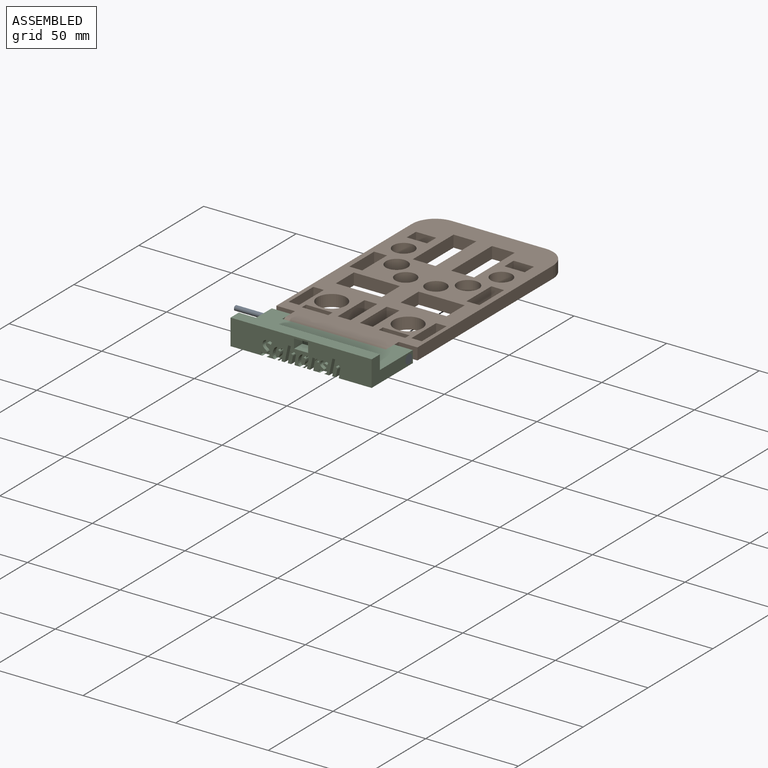
[diagram: assembled view]
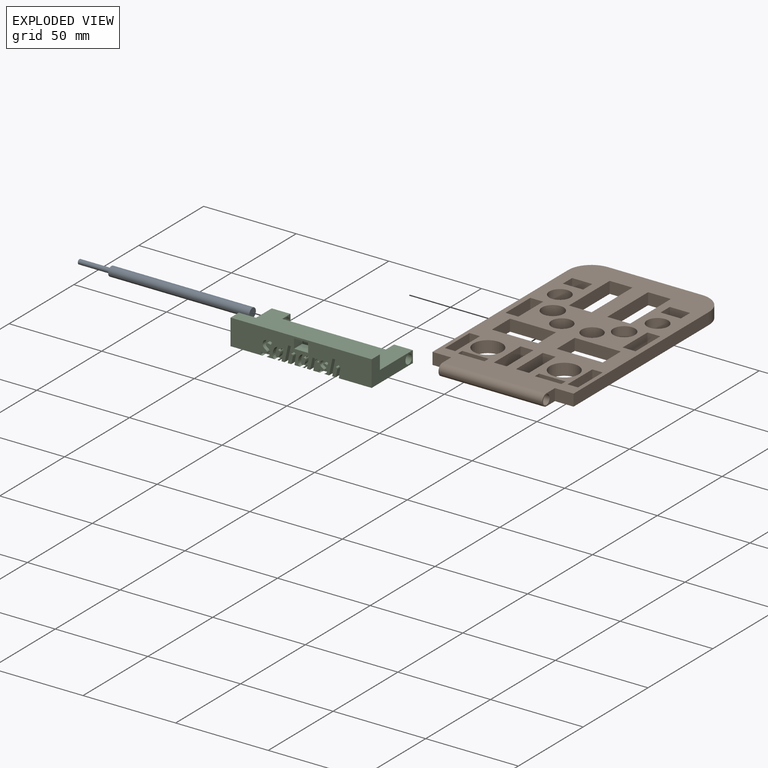
[diagram: exploded view]
GUIDED TOUR — MATED ASSEMBLY (Onshape document 9b8d108303adb15eadcaca60, AutoMate assembly 9b8d108303adb15eadcaca60_f4c23a472c292c9cf61c859a_29425e87a7d9bad215cfdd7b_default)

This assembly has 3 components, labeled P0..P2 below (a component is one placed occurrence of a part; the same part can appear more than once), held together by 2 mates. A mate is a constraint between two components; its type names the relative motion it leaves free:
  CYLINDRICAL — leaves both rotation about and translation along the listed axis free.
Axis/direction vectors are unit vectors and 'through' points are millimeter coordinates, both in the assembly's world frame.

MATES
  1. CYLINDRICAL "Cylindrical 1": P2 <-> P1, axis (1.000, 0.000, 0.000) through (-28.02, -53.14, -25.79) mm
  2. CYLINDRICAL "Cylindrical 2": P0 <-> P2, axis (1.000, 0.000, 0.000) through (38.02, -53.14, -25.79) mm

ASSEMBLY ORDER
  1. P0 — the base component [order verified]
  2. P2 [order verified]
  3. P1 [order verified]
Order-tag legend:
  [order verified] — this step's position reverses a verified removal order: the component was checked to insert without passing through the ones already placed.

Of the 3 components, 1 carries the full construction recipe — the FeatureScript program that regenerates the part's solid from scratch; the rest are supplied as boundary geometry only.
Each toured component is shown spotlighted twice — in the assembled view, then in the exploded view, where a leader line traces a displaced component back to its assembled socket (saturated green if recipe-attached, orange if geometry-only; every other component desaturated gray) — followed by its recipe or geometry summary and the mates that hold it.
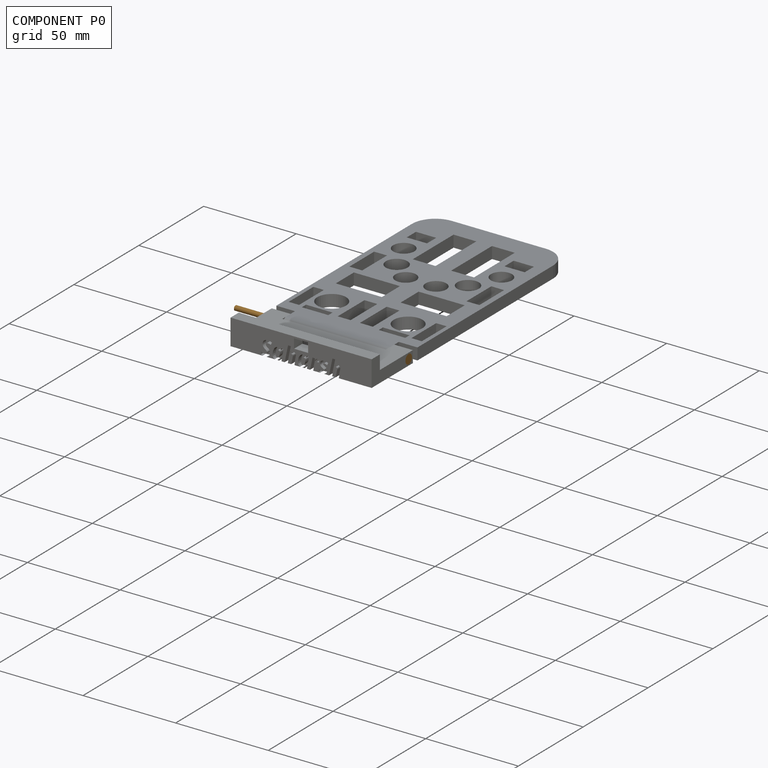
[diagram: component P0 — assembled]
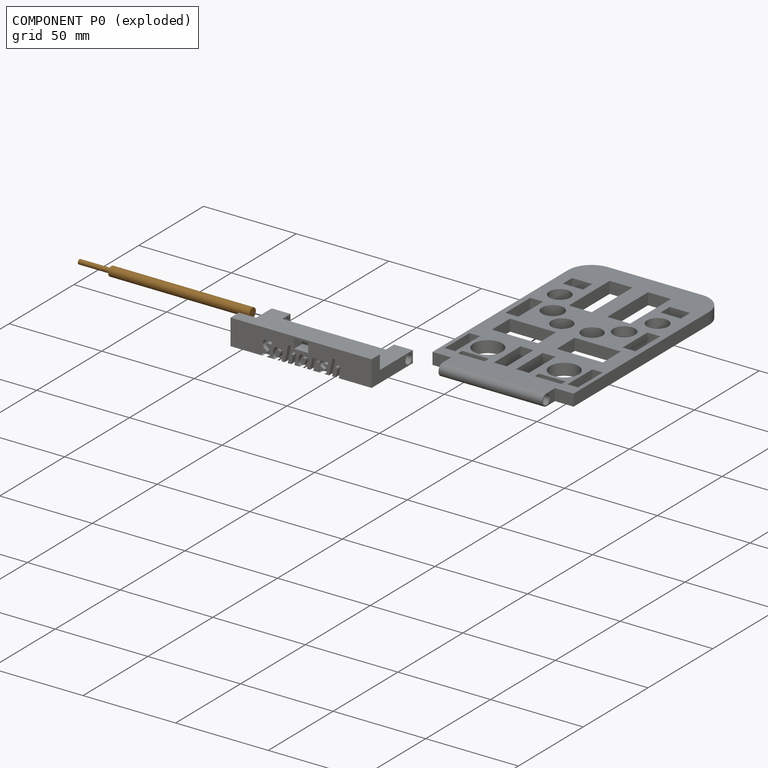
[diagram: component P0 — exploded]
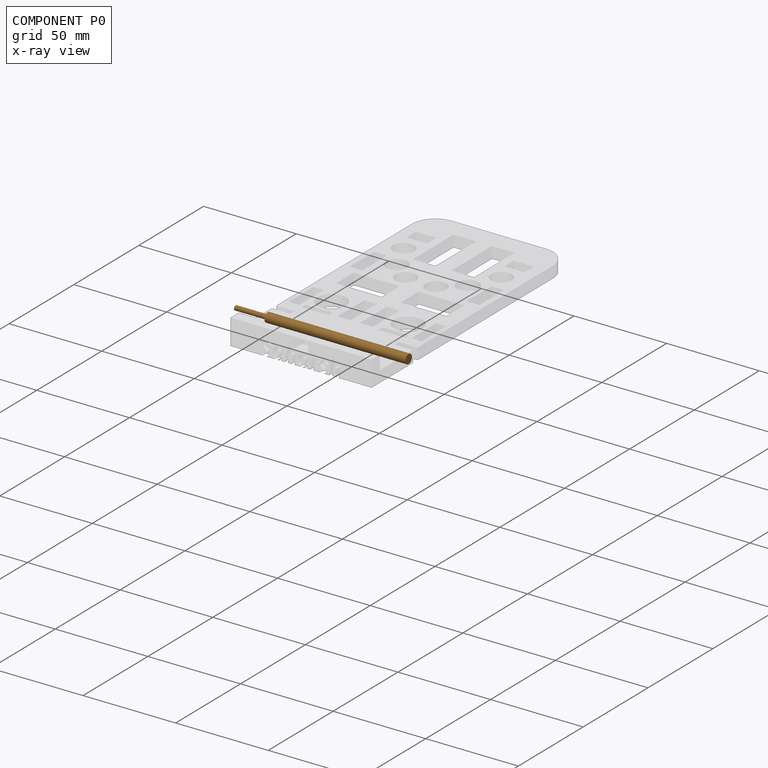
[diagram: component P0 — x-ray view]
COMPONENT P0 — geometry summary (no construction recipe available for this part):
  bounding box: 93.5 x 5.1 x 5.1 mm
  B-rep topology: 1 solid, 5 faces, 12 edges
  volume: 1632 mm^3 (68% of its bounding box)
  symmetry: revolution-symmetric about the z axis through its bounding-box center; mirror-symmetric across its x mid-plane, y mid-plane
Held by: CYLINDRICAL mate "Cylindrical 2" to P2.
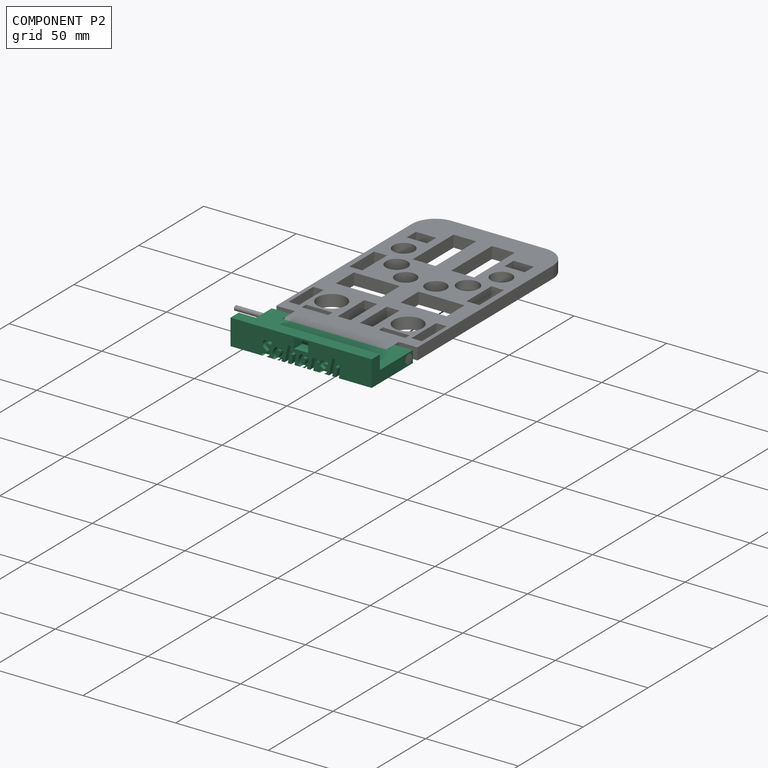
[diagram: component P2 — assembled]
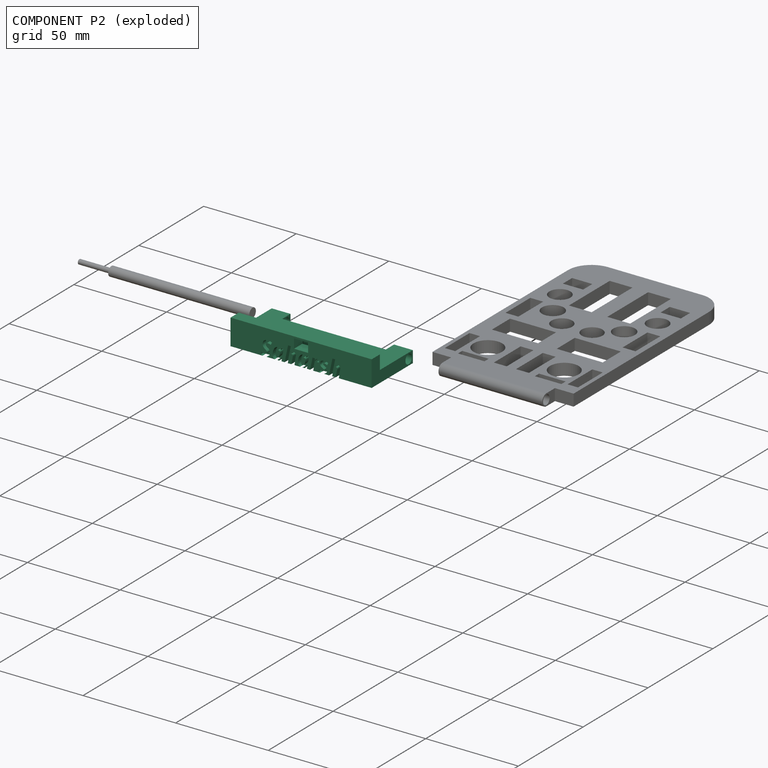
[diagram: component P2 — exploded]
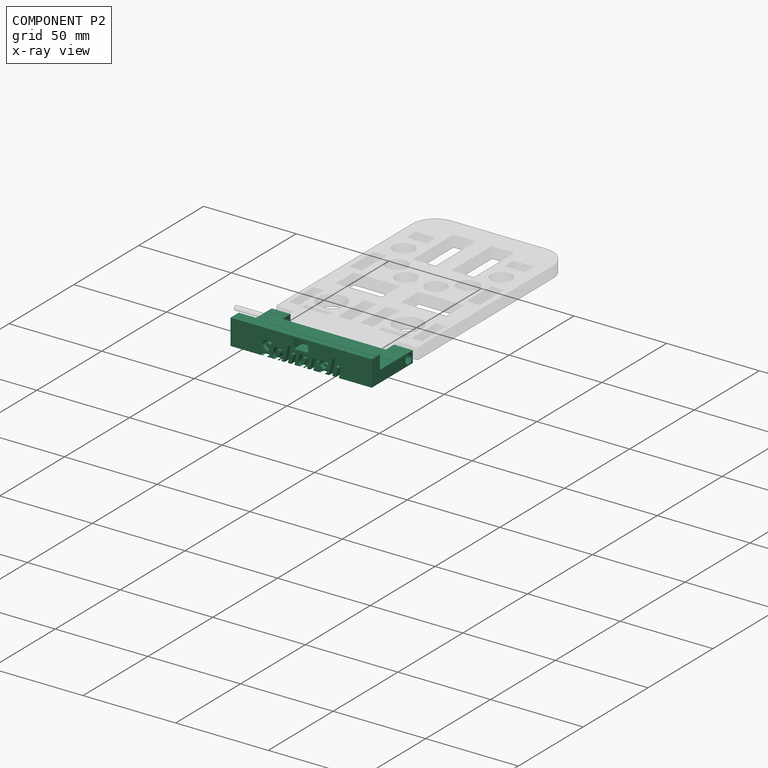
[diagram: component P2 — x-ray view]
COMPONENT P2 — recipe-attached (CADFS 00294361, mesh-verified: the recipe's output STEP matches this component's geometry to below the mesh-comparison resolution (tessellation chordal tolerance ~0.126 mm)).
Held by: CYLINDRICAL mate "Cylindrical 1" to P1; CYLINDRICAL mate "Cylindrical 2" to P0.
Construction recipe (FeatureScript — the CAD program that rebuilds this solid; sketch coordinates are in the units given by the * unit suffixes, e.g. mm):

FeatureScript 1511;
import(path : "onshape/std/geometry.fs", version : "1511.0");
import(path : "onshape/std/common.fs", version : "1511.0");
const mm = millimeter;
const VERTEX = EntityType.VERTEX;
const EDGE = EntityType.EDGE;
const FACE = EntityType.FACE;
const BODY = EntityType.BODY;
function v(x, y){return vector(x, y);}
function OD(order){return orderDisambiguation(order);}
function OSD(set){return originalSetDisambiguation(set);}
function TD(topology){return topologyDisambiguation(topology);}
function TDD(query){return trueDependencyDisambiguation(query);}
function sQuery(a, b, c) {return sketchEntityQuery(a, b, c);}

annotation { "Feature Type Name" : "Feature", "Feature Type Description" : "" }
export const myFeature = defineFeature(function(context is Context, id is Id, definition is map)
    precondition{}
    {
        {
            var Q0;
            Q0=qCreatedBy(makeId("Top.planeOp"),FACE);
            var sketch = newSketch(context, id + "F0", { "sketchPlane" : qUnion([Q0])});
            skLineSegment(sketch, "E0.bottom", {"start": v(38.1, -12.7) * mm, "end": v(-38.1, -12.7) * mm});
            skLineSegment(sketch, "E0.top", {"start": v(38.1, 12.7) * mm, "end": v(-38.1, 12.7) * mm});
            skLineSegment(sketch, "E0.left", {"start": v(38.1, -12.7) * mm, "end": v(38.1, 12.7) * mm});
            skLineSegment(sketch, "E0.right", {"start": v(-38.1, -12.7) * mm, "end": v(-38.1, 12.7) * mm});
            skPoint(sketch, "E0.middle", {"position": v(0, 0) * mm});
            skSolve(sketch);
        }
        {
            var Q0;
            Q0=qCreatedBy(makeId("Top.planeOp"),FACE);
            var sketch = newSketch(context, id + "F1", { "sketchPlane" : qUnion([Q0])});
            skLineSegment(sketch, "E1.bottom", {"start": v(10.05, -3.74) * mm, "end": v(-10.05, -3.74) * mm});
            skLineSegment(sketch, "E1.top", {"start": v(10.05, 3.74) * mm, "end": v(-10.05, 3.74) * mm});
            skLineSegment(sketch, "E1.left", {"start": v(10.05, -3.74) * mm, "end": v(10.05, 3.74) * mm});
            skLineSegment(sketch, "E1.right", {"start": v(-10.05, -3.74) * mm, "end": v(-10.05, 3.74) * mm});
            skPoint(sketch, "E1.middle", {"position": v(0, 0) * mm});
            skSolve(sketch);
        }
        {
            var Q0;
            Q0=makeQuery(id+"F0.imprint","IMPRINT",FACE,{"disambiguationData":[TD([[makeQuery(id+"F0.imprint","IMPRINT",EDGE,{"derivedFrom":sQuery(id+"F0.wireOp",EDGE,"E0.bottom")}),-1.0]])]});
            extrude(context, id + "F2", {"entities" : qUnion([Q0]), "depth" : 6.35 * mm});
        }
        {
            var Q0;
            Q0=qSketchRegion(id+"F1",true);
            extrude(context, id + "F3", {"entities" : qUnion([Q0]), "operationType" : NewBodyOperationType.REMOVE, "depth" : 6.35 * mm});
        }
        {
            var Q0;
            Q0=qCreatedBy(makeId("Front.planeOp"),FACE);
            var sketch = newSketch(context, id + "F4", { "sketchPlane" : qUnion([Q0])});
            skLineSegment(sketch, "E2.bottom", {"start": v(38.1, 0) * mm, "end": v(27.94, 0) * mm});
            skLineSegment(sketch, "E2.top", {"start": v(38.1, 6.35) * mm, "end": v(27.94, 6.35) * mm});
            skLineSegment(sketch, "E2.left", {"start": v(38.1, 0) * mm, "end": v(38.1, 6.35) * mm});
            skLineSegment(sketch, "E2.right", {"start": v(27.94, 0) * mm, "end": v(27.94, 6.35) * mm});
            skLineSegment(sketch, "E3.MirrorCS", {"start": v(-27.94, 0) * mm, "end": v(-27.94, 6.35) * mm});
            skLineSegment(sketch, "E4.MirrorCS", {"start": v(-38.1, 0) * mm, "end": v(-38.1, 6.35) * mm});
            skLineSegment(sketch, "E5.MirrorCS", {"start": v(-38.1, 6.35) * mm, "end": v(-27.94, 6.35) * mm});
            skLineSegment(sketch, "E6.MirrorCS", {"start": v(-38.1, 0) * mm, "end": v(-27.94, 0) * mm});
            skSolve(sketch);
        }
        {
            var Q0;
            Q0=qSketchRegion(id+"F4",true);
            extrude(context, id + "F5", {"entities" : qUnion([Q0]), "operationType" : NewBodyOperationType.ADD, "oppositeDirection" : true, "depth" : 19.05 * mm});
        }
        {
            var Q0;
            Q0=makeQuery(id+"F5.boolean.opBoolean","MERGE",FACE,{"derivedFrom":[makeQuery(id+"F2.opExtrude","SWEPT_FACE",FACE,{"disambiguationData":[OSD([sQuery(id+"F0.wireOp",EDGE,"E0.right")])]}),makeQuery(id+"F5.opExtrude","SWEPT_FACE",FACE,{"disambiguationData":[OSD([sQuery(id+"F4.wireOp",EDGE,"E4.MirrorCS")])]})]});
            var sketch = newSketch(context, id + "F6", { "sketchPlane" : qUnion([Q0])});
            skCircle(sketch, "E7", {"center": v(-15.87, 3.17) * mm, "radius": 2.54 * mm});
            skPoint(sketch, "E8", {"position": v(-19.05, 3.17) * mm});
            skCircle(sketch, "E9", {"center": v(-15.87, 3.17) * mm, "radius": 3.18 * mm});
            skSolve(sketch);
        }
        {
            var Q0;
            Q0=makeQuery(id+"F6.imprint","IMPRINT",FACE,{"disambiguationData":[TD([[makeQuery(id+"F6.imprint","IMPRINT",EDGE,{"derivedFrom":sQuery(id+"F6.wireOp",EDGE,"E7")}),1.0]])]});
            extrude(context, id + "F7", {"entities" : qUnion([Q0]), "operationType" : NewBodyOperationType.REMOVE, "oppositeDirection" : true, "depth" : 76.2 * mm});
        }
        {
            var Q0;
            Q0=qCreatedBy(makeId("Top.planeOp"),FACE);
            var sketch = newSketch(context, id + "F8", { "sketchPlane" : qUnion([Q0])});
            skLineSegment(sketch, "E10.bottom", {"start": v(-38.1, -12.7) * mm, "end": v(38.1, -12.7) * mm});
            skLineSegment(sketch, "E10.top", {"start": v(-38.1, -6.35) * mm, "end": v(38.1, -6.35) * mm});
            skLineSegment(sketch, "E10.left", {"start": v(-38.1, -12.7) * mm, "end": v(-38.1, -6.35) * mm});
            skLineSegment(sketch, "E10.right", {"start": v(38.1, -12.7) * mm, "end": v(38.1, -6.35) * mm});
            skSolve(sketch);
        }
        {
            var Q0;
            Q0=qSketchRegion(id+"F8",true);
            extrude(context, id + "F9", {"entities" : qUnion([Q0]), "operationType" : NewBodyOperationType.ADD, "depth" : 13.97 * mm});
        }
        {
            var Q0;
            Q0=makeQuery(id+"F9.boolean.opBoolean","MERGE",FACE,{"derivedFrom":[makeQuery(id+"F2.opExtrude","SWEPT_FACE",FACE,{"disambiguationData":[OSD([sQuery(id+"F0.wireOp",EDGE,"E0.bottom")])]}),makeQuery(id+"F9.opExtrude","SWEPT_FACE",FACE,{"disambiguationData":[OSD([sQuery(id+"F8.wireOp",EDGE,"E10.bottom")])]})]});
            var sketch = newSketch(context, id + "F10", { "sketchPlane" : qUnion([Q0])});
            skLineSegment(sketch, "E11.right", {"start": v(55.82, 5.12) * mm, "end": v(55.82, 5.12) * mm});
            skLineSegment(sketch, "E12.bottom", {"start": v(-3.81, 7.93) * mm, "end": v(3.81, 7.93) * mm});
            skLineSegment(sketch, "E12.top", {"start": v(-3.81, 13.01) * mm, "end": v(3.8, 13.01) * mm});
            skLineSegment(sketch, "E12.left", {"start": v(-3.81, 7.93) * mm, "end": v(-3.81, 13.01) * mm});
            skLineSegment(sketch, "E12.right", {"start": v(3.81, 7.93) * mm, "end": v(3.8, 13.01) * mm});
            skPoint(sketch, "E12.middle", {"position": v(0, 10.47) * mm});
            skSolve(sketch);
        }
        {
            var Q0;
            Q0=qSketchRegion(id+"F10",true);
            extrude(context, id + "F11", {"entities" : qUnion([Q0]), "operationType" : NewBodyOperationType.ADD, "depth" : 25.4 * mm});
        }
        {
            var Q0;
            Q0=makeQuery(id+"F11.opExtrude","CAP_FACE",FACE,{"disambiguationData":[OSD([sQuery(id+"F10.wireOp",EDGE,"E12.bottom"),sQuery(id+"F10.wireOp",EDGE,"E12.top"),sQuery(id+"F10.wireOp",EDGE,"E12.left"),sQuery(id+"F10.wireOp",EDGE,"E12.right")])],"isStart":false});
            extrude(context, id + "F12", {"entities" : qUnion([Q0]), "operationType" : NewBodyOperationType.REMOVE, "endBound" : BoundingType.SYMMETRIC, "depth" : 381 * mm});
        }
        {
            var Q0;
            Q0=makeQuery(id+"F9.boolean.opBoolean","MERGE",FACE,{"derivedFrom":[makeQuery(id+"F2.opExtrude","SWEPT_FACE",FACE,{"disambiguationData":[OSD([sQuery(id+"F0.wireOp",EDGE,"E0.bottom")])]}),makeQuery(id+"F9.opExtrude","SWEPT_FACE",FACE,{"disambiguationData":[OSD([sQuery(id+"F8.wireOp",EDGE,"E10.bottom")])]})]});
            var sketch = newSketch(context, id + "F13", { "sketchPlane" : qUnion([Q0])});
            skText(sketch, "E13", { "text": "Saharsh", "fontName": "NotoSans-BoldItalic.ttf"});
            const initialGuessF13  = {"E13": [-0.02196, 0, 1, 0, 0.00825]};
            skSetInitialGuess(sketch, initialGuessF13);
            skSolve(sketch);
        }
        {
            var Q0;
            Q0 = qSketchRegion(id + "F13", true);
            extrude(context, id + "F14", {"entities" : qUnion([Q0]), "operationType" : NewBodyOperationType.REMOVE, "oppositeDirection" : true, "depth" : 2.54 * mm});
        }
    });
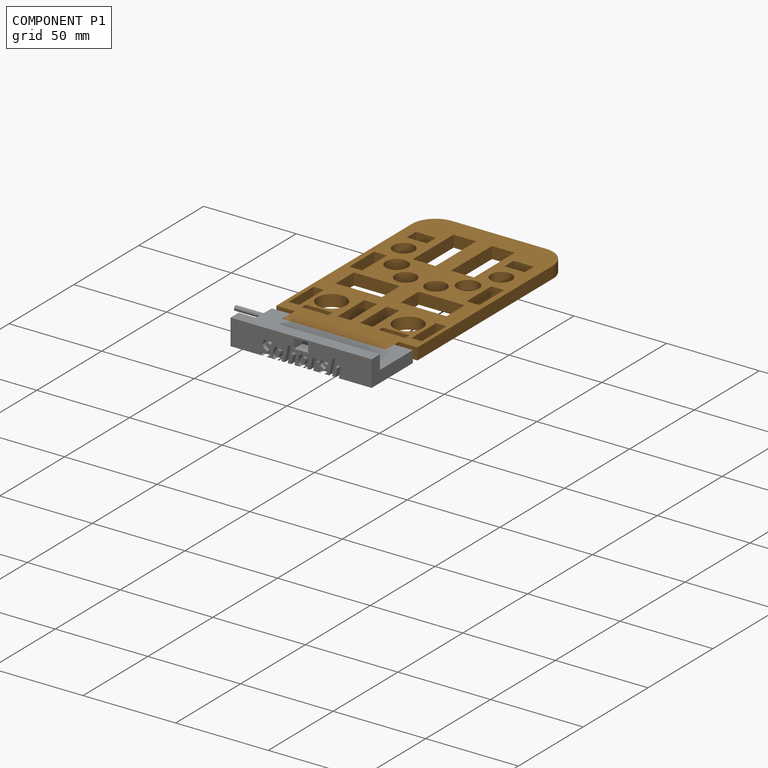
[diagram: component P1 — assembled]
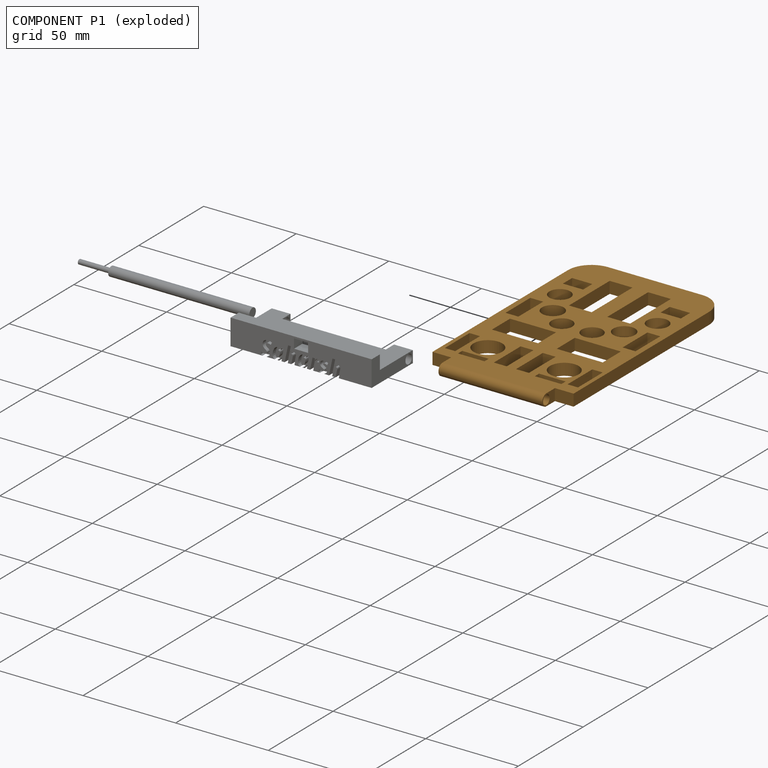
[diagram: component P1 — exploded]
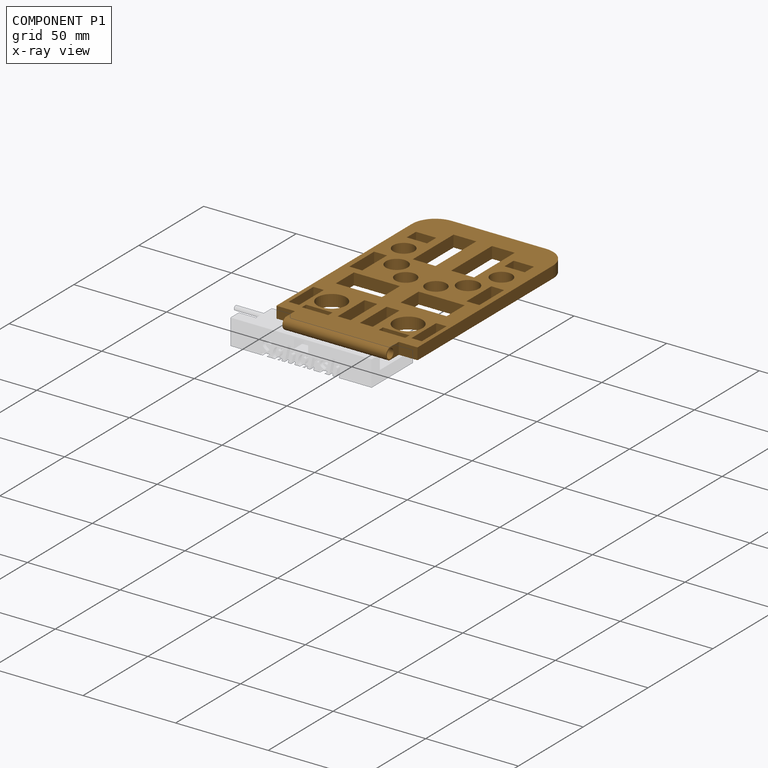
[diagram: component P1 — x-ray view]
COMPONENT P1 — geometry summary (no construction recipe available for this part):
  bounding box: 127.0 x 76.2 x 6.4 mm
  B-rep topology: 1 solid, 77 faces, 452 edges
  volume: 36288 mm^3 (59% of its bounding box)
  symmetry: 2-fold rotationally symmetric about the y axis; mirror-symmetric across its x mid-plane, z mid-plane
Held by: CYLINDRICAL mate "Cylindrical 1" to P2.
PROVENANCE & LICENSES
Assembly (occurrences, transforms, mates, per-part STEP geometry): AutoMate dataset, Zenodo record 7776208, CC0.
Construction recipes: CADFS (HuggingFace VladPyatov/CADFS, CC-BY-4.0, layered over the ABC dataset), FeatureScript reconstruction programs keyed by ABC model id.
Join: ABC meta listings map ABC model id -> Onshape documentId; within a shared document, parts are matched by geometric signature (bounding-box dims + volume at 0.1% relative tolerance, exact B-rep face/solid counts).
Verification: 1 of this assembly's 3 components carries a recipe attachment, and every attachment is mesh-verified: the CADFS STEP and the AutoMate member STEP were compared as meshes in their shared local frame (symmetric sampled-point-to-mesh distance); worst across the 1 attachment: below the mesh-comparison resolution (tessellation chordal tolerance ~0.126 mm) on a 84 mm part.
Renders: orthographic iso camera (az 35 / el 25); the floor grid conveys scale (grid pitch printed in each image; no ruler). In the exploded view each component is displaced by its stored offset vector: the offsets alone carry the explosion direction (mate normal/axis signs are not orientation cues and do not encode it), and separation distances are assigned per mate-chain, not proportionally to assembly-order depth.
